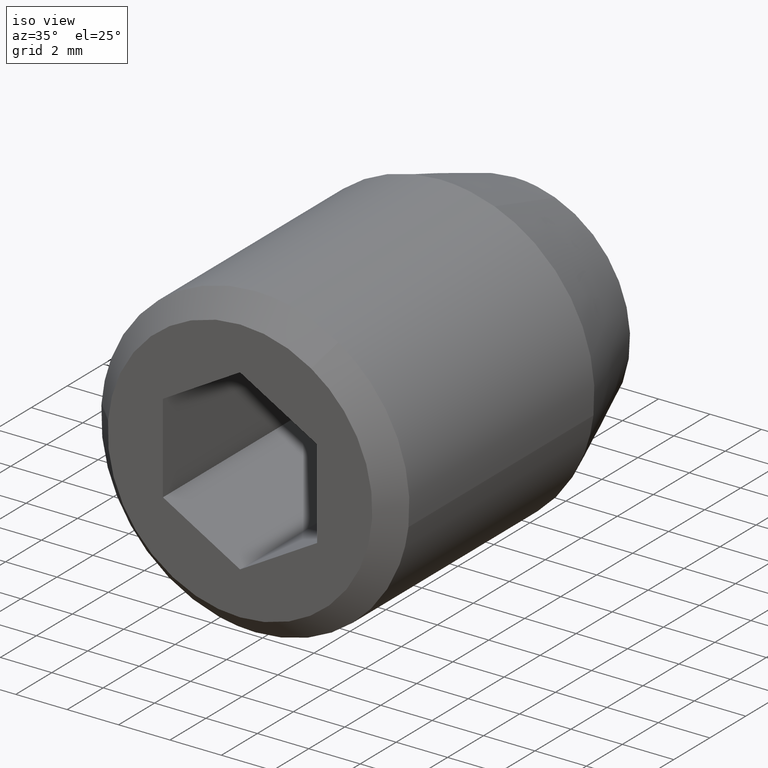
[diagram: clean part render]
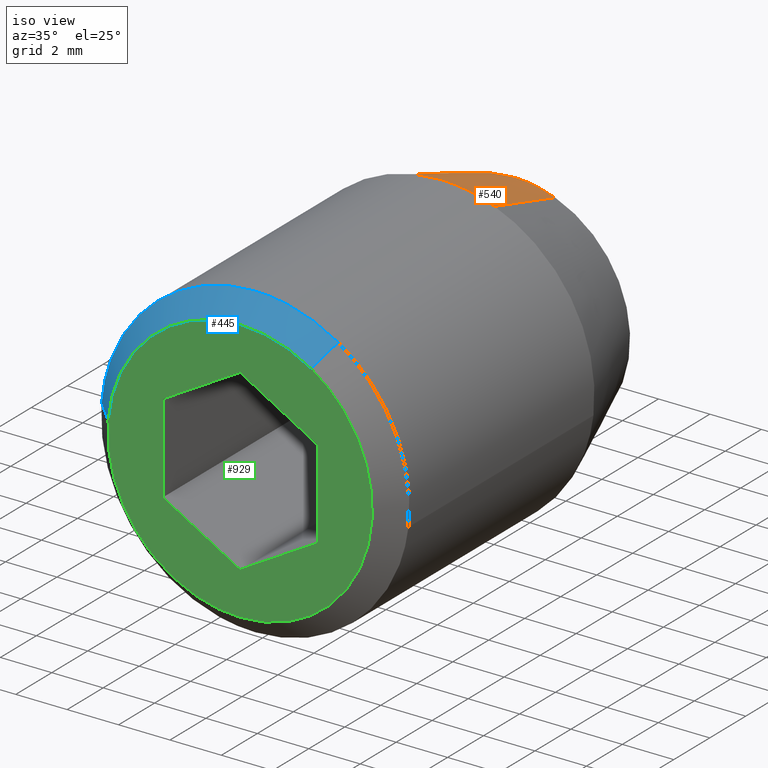
[diagram: same view with three faces highlighted in distinct colors, each labeled with its STEP entity id]
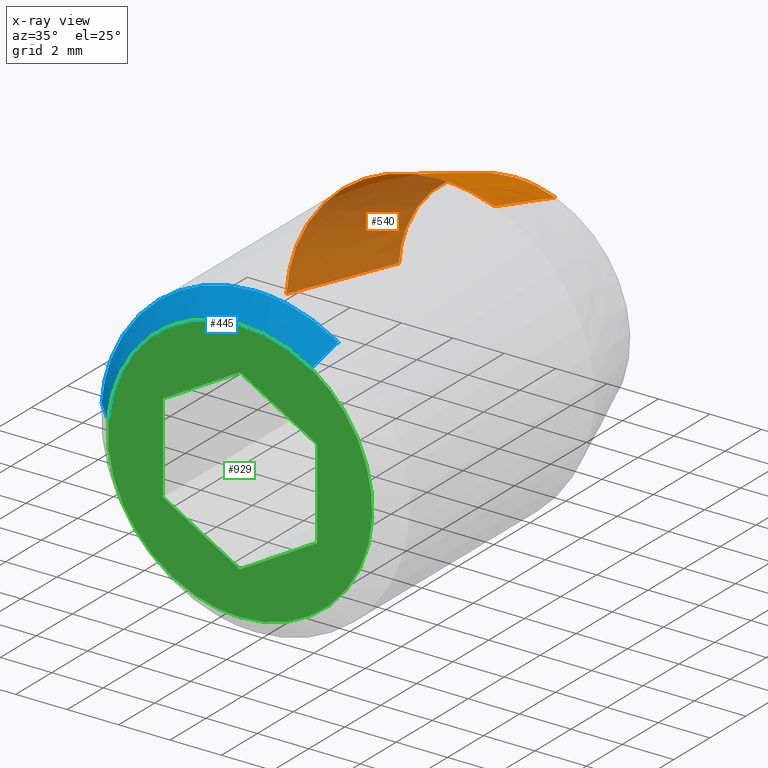
[diagram: x-ray of the same camera — body ghosted, the three highlighted faces saturated]
A machine part, iso view with three faces highlighted in distinct colors.
The next image is the same camera in x-ray (body ghosted, the three faces saturated) — at least one of them is partly hidden behind the body in this view.
Their STEP definitions:

[orange] entity #540 — the highlighted face is a freeform B-spline surface patch.
#446=CARTESIAN_POINT('',(1.569095210722392,0.103030400000000,4.177540720290837));
#447=CARTESIAN_POINT('',(0.941540428280011,0.103030400000000,4.413251936416990));
#448=CARTESIAN_POINT('',(0.272429107674300,0.103030400000000,4.454176537957586));
#449=CARTESIAN_POINT('',(-4.181747430283287,0.103030400000000,4.726605645631885));
#450=CARTESIAN_POINT('',(-4.454176537957586,0.103030400000000,0.272429107674299));
#451=CARTESIAN_POINT('',(2.123223162240108,-4.226822160000000,5.652844491469169));
#452=CARTESIAN_POINT('',(1.274046617342760,-4.226822160000000,5.971797420685251));
#453=CARTESIAN_POINT('',(0.368637790447513,-4.226822160000000,6.027174596845539));
#454=CARTESIAN_POINT('',(-5.658536806398027,-4.226822159999999,6.395812387293051));
#455=CARTESIAN_POINT('',(-6.027174596845540,-4.226822160000000,0.368637790447512));
#463=(BOUNDED_SURFACE()B_SPLINE_SURFACE(2,1,((#446,#451),(#447,#452),(#448,#453),(#449,#454),(#450,#455)),.UNSPECIFIED.,.F.,.F.,.U.)B_SPLINE_SURFACE_WITH_KNOTS((3,2,3),(2,2),(0.0,2.000962166433828,12.005772998602970),(0.0,4.607732869345269),.UNSPECIFIED.)GEOMETRIC_REPRESENTATION_ITEM()RATIONAL_B_SPLINE_SURFACE(((0.906274169979695,0.906274169979695),(0.941421356237309,0.941421356237309),(1.0,1.0),(0.707106781186548,0.707106781186548),(1.0,1.0)))REPRESENTATION_ITEM('')SURFACE());
#464=CARTESIAN_POINT('',(2.109704741784568,-4.121211920134648,5.616861052499977));
#465=VERTEX_POINT('',#464);
#466=CARTESIAN_POINT('',(0.0,-4.121216000000000,5.999999999999999));
#467=VERTEX_POINT('',#466);
#468=CARTESIAN_POINT('',(2.109704741784568,-4.121211920134647,5.616861052499977));
#469=CARTESIAN_POINT('',(1.089642630550919,-4.121213960067324,5.999999304936567));
#470=CARTESIAN_POINT('',(0.0,-4.121216000000000,5.999999999999999));
#478=(BOUNDED_CURVE()B_SPLINE_CURVE(2,(#468,#469,#470),.UNSPECIFIED.,.F.,.U.)B_SPLINE_CURVE_WITH_KNOTS((3,3),(0.440284243518573,0.500000000000000),.UNSPECIFIED.)CURVE()GEOMETRIC_REPRESENTATION_ITEM()RATIONAL_B_SPLINE_CURVE((0.893499643505045,0.930038639481098,1.0))REPRESENTATION_ITEM(''));
#479=EDGE_CURVE('',#465,#467,#478,.T.);
#480=ORIENTED_EDGE('',*,*,#479,.F.);
#481=CARTESIAN_POINT('',(1.582279453548931,0.000001884171921,4.212645909500716));
#482=VERTEX_POINT('',#481);
#483=CARTESIAN_POINT('',(1.582279453548931,0.000001884171921,4.212645909500716));
#484=CARTESIAN_POINT('',(2.109704741784568,-4.121211920134648,5.616861052499977));
#485=QUASI_UNIFORM_CURVE('',1,(#483,#484),.UNSPECIFIED.,.F.,.U.);
#486=EDGE_CURVE('',#482,#465,#485,.T.);
#487=ORIENTED_EDGE('',*,*,#486,.F.);
#488=CARTESIAN_POINT('',(0.0,0.0,4.499999999999999));
#489=VERTEX_POINT('',#488);
#490=CARTESIAN_POINT('',(1.582279453548931,0.000001884171921,4.212645909500716));
#491=CARTESIAN_POINT('',(0.817232460141086,0.000000942085960,4.499999679004433));
#492=CARTESIAN_POINT('',(0.0,0.0,4.499999999999999));
#500=(BOUNDED_CURVE()B_SPLINE_CURVE(2,(#490,#491,#492),.UNSPECIFIED.,.F.,.U.)B_SPLINE_CURVE_WITH_KNOTS((3,3),(0.440284215520028,0.500000000000000),.UNSPECIFIED.)CURVE()GEOMETRIC_REPRESENTATION_ITEM()RATIONAL_B_SPLINE_CURVE((0.893499609241441,0.930038606678762,1.0))REPRESENTATION_ITEM(''));
#501=EDGE_CURVE('',#482,#489,#500,.T.);
#502=ORIENTED_EDGE('',*,*,#501,.T.);
#503=CARTESIAN_POINT('',(-4.491606592898449,-1.484542E-012,0.274718427914976));
#504=VERTEX_POINT('',#503);
#505=CARTESIAN_POINT('',(0.0,0.0,4.499999999999999));
#506=CARTESIAN_POINT('',(-4.233177301060372,0.0,4.499999999999999));
#507=CARTESIAN_POINT('',(-4.491606592898449,-1.484542E-012,0.274718427914976));
#515=(BOUNDED_CURVE()B_SPLINE_CURVE(2,(#505,#506,#507),.UNSPECIFIED.,.F.,.U.)B_SPLINE_CURVE_WITH_KNOTS((3,3),(0.500000000000000,0.739332962241348),.UNSPECIFIED.)CURVE()GEOMETRIC_REPRESENTATION_ITEM()RATIONAL_B_SPLINE_CURVE((1.0,0.719603993283893,0.976072041671871))REPRESENTATION_ITEM(''));
#516=EDGE_CURVE('',#489,#504,#515,.T.);
#517=ORIENTED_EDGE('',*,*,#516,.T.);
#518=CARTESIAN_POINT('',(-5.988808820275182,-4.121215999515002,0.366290748006480));
#519=VERTEX_POINT('',#518);
#520=CARTESIAN_POINT('',(-4.491606592898449,-1.484542E-012,0.274718427914976));
#521=CARTESIAN_POINT('',(-5.988808820275182,-4.121215999515002,0.366290748006480));
#522=QUASI_UNIFORM_CURVE('',1,(#520,#521),.UNSPECIFIED.,.F.,.U.);
#523=EDGE_CURVE('',#504,#519,#522,.T.);
#524=ORIENTED_EDGE('',*,*,#523,.T.);
#525=CARTESIAN_POINT('',(0.0,-4.121216000000000,5.999999999999999));
#526=CARTESIAN_POINT('',(-5.644236863341449,-4.121215999999999,5.999999999999998));
#527=CARTESIAN_POINT('',(-5.988808820275182,-4.121215999515002,0.366290748006480));
#535=(BOUNDED_CURVE()B_SPLINE_CURVE(2,(#525,#526,#527),.UNSPECIFIED.,.F.,.U.)B_SPLINE_CURVE_WITH_KNOTS((3,3),(0.500000000000000,0.739332976336339),.UNSPECIFIED.)CURVE()GEOMETRIC_REPRESENTATION_ITEM()RATIONAL_B_SPLINE_CURVE((1.0,0.719603976770584,0.976072071880122))REPRESENTATION_ITEM(''));
#536=EDGE_CURVE('',#467,#519,#535,.T.);
#537=ORIENTED_EDGE('',*,*,#536,.F.);
#538=EDGE_LOOP('',(#480,#487,#502,#517,#524,#537));
#539=FACE_OUTER_BOUND('',#538,.T.);
#540=ADVANCED_FACE('',(#539),#463,.T.);

[blue] entity #445 — the highlighted face is a freeform B-spline surface patch.
#254=CARTESIAN_POINT('',(3.227104760680961,-14.399999999999780,5.058240293184284));
#255=VERTEX_POINT('',#254);
#271=CARTESIAN_POINT('',(2.769931586254138,-15.249999999999620,4.341656251648153));
#272=VERTEX_POINT('',#271);
#273=CARTESIAN_POINT('',(2.769931586254138,-15.249999999999620,4.341656251648153));
#274=CARTESIAN_POINT('',(3.227104760680961,-14.399999999999780,5.058240293184284));
#275=QUASI_UNIFORM_CURVE('',1,(#273,#274),.UNSPECIFIED.,.F.,.U.);
#276=EDGE_CURVE('',#272,#255,#275,.T.);
#295=CARTESIAN_POINT('',(-5.134124268725692,-15.249999999999790,0.404064342999993));
#296=VERTEX_POINT('',#295);
#312=CARTESIAN_POINT('',(-5.981504002399075,-14.399999999999240,0.470754574372927));
#313=VERTEX_POINT('',#312);
#314=CARTESIAN_POINT('',(-5.134124268725692,-15.249999999999790,0.404064342999993));
#315=CARTESIAN_POINT('',(-5.981504002399075,-14.399999999999240,0.470754574372927));
#316=QUASI_UNIFORM_CURVE('',1,(#314,#315),.UNSPECIFIED.,.F.,.U.);
#317=EDGE_CURVE('',#296,#313,#316,.T.);
#367=CARTESIAN_POINT('',(-5.112939775383778,-15.271250000000000,0.402397087214187));
#368=CARTESIAN_POINT('',(-4.710542688169590,-15.271250000000009,5.515336862597963));
#369=CARTESIAN_POINT('',(0.402397087214188,-15.271250000000000,5.112939775383777));
#370=CARTESIAN_POINT('',(1.678971265486370,-15.271249999999998,5.012471208665521));
#371=CARTESIAN_POINT('',(2.758502256887217,-15.271249999999995,4.323741650613284));
#372=CARTESIAN_POINT('',(-6.003218108074153,-14.378218750000000,0.472463511545895));
#373=CARTESIAN_POINT('',(-5.530754596528257,-14.378218749999991,6.475681619620048));
#374=CARTESIAN_POINT('',(0.472463511545896,-14.378218750000000,6.003218108074152));
#375=CARTESIAN_POINT('',(1.971318096182232,-14.378218749999998,5.885255693981367));
#376=CARTESIAN_POINT('',(3.238819823271979,-14.378218750000000,5.076602759250732));
#384=(BOUNDED_SURFACE()B_SPLINE_SURFACE(2,1,((#367,#372),(#368,#373),(#369,#374),(#370,#375),(#371,#376)),.UNSPECIFIED.,.F.,.F.,.U.)B_SPLINE_SURFACE_WITH_KNOTS((3,2,3),(2,2),(0.0,9.977213853576053,13.169922286720389),(0.0,1.0),.UNSPECIFIED.)GEOMETRIC_REPRESENTATION_ITEM()RATIONAL_B_SPLINE_SURFACE(((1.0,1.0),(0.707106781186548,0.707106781186548),(1.0,1.0),(0.906274169979695,0.906274169979695),(0.872532871172386,0.872532871172386)))REPRESENTATION_ITEM('')SURFACE());
#385=CARTESIAN_POINT('',(0.0,-14.400000000000000,5.999999999999999));
#386=VERTEX_POINT('',#385);
#387=CARTESIAN_POINT('',(3.227104760680960,-14.399999999999777,5.058240293184285));
#388=CARTESIAN_POINT('',(1.750968332280244,-14.399999999999997,5.999999999999999));
#389=CARTESIAN_POINT('',(0.0,-14.400000000000000,5.999999999999999));
#397=(BOUNDED_CURVE()B_SPLINE_CURVE(2,(#387,#388,#389),.UNSPECIFIED.,.F.,.U.)B_SPLINE_CURVE_WITH_KNOTS((3,3),(0.407950112627352,0.500000000000000),.UNSPECIFIED.)CURVE()GEOMETRIC_REPRESENTATION_ITEM()RATIONAL_B_SPLINE_CURVE((0.863729296954801,0.892156848784037,1.0))REPRESENTATION_ITEM(''));
#398=EDGE_CURVE('',#255,#386,#397,.T.);
#399=ORIENTED_EDGE('',*,*,#398,.T.);
#400=CARTESIAN_POINT('',(0.0,-14.400000000000000,5.999999999999999));
#401=CARTESIAN_POINT('',(-5.546342949938479,-14.400000000000000,5.999999999999999));
#402=CARTESIAN_POINT('',(-5.981504002399075,-14.399999999999240,0.470754574372926));
#410=(BOUNDED_CURVE()B_SPLINE_CURVE(2,(#400,#401,#402),.UNSPECIFIED.,.F.,.U.)B_SPLINE_CURVE_WITH_KNOTS((3,3),(0.500000000000000,0.736331300632435),.UNSPECIFIED.)CURVE()GEOMETRIC_REPRESENTATION_ITEM()RATIONAL_B_SPLINE_CURVE((1.0,0.723120658605585,0.969723356171123))REPRESENTATION_ITEM(''));
#411=EDGE_CURVE('',#386,#313,#410,.T.);
#412=ORIENTED_EDGE('',*,*,#411,.T.);
#413=ORIENTED_EDGE('',*,*,#317,.F.);
#414=CARTESIAN_POINT('',(0.0,-15.250000000000000,5.150000000000000));
#415=VERTEX_POINT('',#414);
#416=CARTESIAN_POINT('',(0.0,-15.250000000000000,5.150000000000000));
#417=CARTESIAN_POINT('',(-4.760611032036836,-15.250000000000002,5.150000000000000));
#418=CARTESIAN_POINT('',(-5.134124268725693,-15.249999999999796,0.404064342999993));
#426=(BOUNDED_CURVE()B_SPLINE_CURVE(2,(#416,#417,#418),.UNSPECIFIED.,.F.,.U.)B_SPLINE_CURVE_WITH_KNOTS((3,3),(0.500000000000000,0.736331300632662),.UNSPECIFIED.)CURVE()GEOMETRIC_REPRESENTATION_ITEM()RATIONAL_B_SPLINE_CURVE((1.0,0.723120658605320,0.969723356171596))REPRESENTATION_ITEM(''));
#427=EDGE_CURVE('',#415,#296,#426,.T.);
#428=ORIENTED_EDGE('',*,*,#427,.F.);
#429=CARTESIAN_POINT('',(2.769931586254138,-15.249999999999625,4.341656251648153));
#430=CARTESIAN_POINT('',(1.502914485210922,-15.250000000000002,5.150000000000000));
#431=CARTESIAN_POINT('',(0.0,-15.250000000000000,5.150000000000000));
#439=(BOUNDED_CURVE()B_SPLINE_CURVE(2,(#429,#430,#431),.UNSPECIFIED.,.F.,.U.)B_SPLINE_CURVE_WITH_KNOTS((3,3),(0.407950112627149,0.500000000000000),.UNSPECIFIED.)CURVE()GEOMETRIC_REPRESENTATION_ITEM()RATIONAL_B_SPLINE_CURVE((0.863729296954676,0.892156848783799,1.0))REPRESENTATION_ITEM(''));
#440=EDGE_CURVE('',#272,#415,#439,.T.);
#441=ORIENTED_EDGE('',*,*,#440,.F.);
#442=ORIENTED_EDGE('',*,*,#276,.T.);
#443=EDGE_LOOP('',(#399,#412,#413,#428,#441,#442));
#444=FACE_OUTER_BOUND('',#443,.T.);
#445=ADVANCED_FACE('',(#444),#384,.T.);

[green] entity #929 — the highlighted face is a freeform B-spline surface patch.
#271=CARTESIAN_POINT('',(2.769931586254138,-15.249999999999620,4.341656251648153));
#272=VERTEX_POINT('',#271);
#278=CARTESIAN_POINT('',(0.0,-15.250000000000000,-5.150000000000001));
#279=VERTEX_POINT('',#278);
#280=CARTESIAN_POINT('',(0.0,-15.250000000000000,-5.150000000000001));
#281=CARTESIAN_POINT('',(5.150000000000001,-15.250000000000002,-5.150000000000001));
#282=CARTESIAN_POINT('',(5.150000000000000,-15.250000000000000,-1.025608E-015));
#283=CARTESIAN_POINT('',(5.150000000000000,-15.250000000000004,2.823197328466532));
#284=CARTESIAN_POINT('',(2.769931586254138,-15.249999999999623,4.341656251648153));
#292=(BOUNDED_CURVE()B_SPLINE_CURVE(2,(#280,#281,#282,#283,#284),.UNSPECIFIED.,.F.,.U.)B_SPLINE_CURVE_WITH_KNOTS((3,2,3),(0.0,0.250000000000000,0.407950112627149),.UNSPECIFIED.)CURVE()GEOMETRIC_REPRESENTATION_ITEM()RATIONAL_B_SPLINE_CURVE((1.0,0.707106781186547,1.0,0.814949932402748,0.863729296954676))REPRESENTATION_ITEM(''));
#293=EDGE_CURVE('',#279,#272,#292,.T.);
#295=CARTESIAN_POINT('',(-5.134124268725692,-15.249999999999790,0.404064342999993));
#296=VERTEX_POINT('',#295);
#297=CARTESIAN_POINT('',(-5.134124268725693,-15.249999999999796,0.404064342999993));
#298=CARTESIAN_POINT('',(-5.150000000000000,-15.250000000000002,0.202344051091080));
#299=CARTESIAN_POINT('',(-5.150000000000000,-15.250000000000000,-1.025608E-015));
#300=CARTESIAN_POINT('',(-5.150000000000001,-15.250000000000002,-5.150000000000001));
#301=CARTESIAN_POINT('',(0.0,-15.250000000000000,-5.150000000000001));
#309=(BOUNDED_CURVE()B_SPLINE_CURVE(2,(#297,#298,#299,#300,#301),.UNSPECIFIED.,.F.,.U.)B_SPLINE_CURVE_WITH_KNOTS((3,2,3),(0.736331300632662,0.750000000000000,1.0),.UNSPECIFIED.)CURVE()GEOMETRIC_REPRESENTATION_ITEM()RATIONAL_B_SPLINE_CURVE((0.969723356171596,0.983986122581228,1.0,0.707106781186547,1.0))REPRESENTATION_ITEM(''));
#310=EDGE_CURVE('',#296,#279,#309,.T.);
#414=CARTESIAN_POINT('',(0.0,-15.250000000000000,5.150000000000000));
#415=VERTEX_POINT('',#414);
#416=CARTESIAN_POINT('',(0.0,-15.250000000000000,5.150000000000000));
#417=CARTESIAN_POINT('',(-4.760611032036836,-15.250000000000002,5.150000000000000));
#418=CARTESIAN_POINT('',(-5.134124268725693,-15.249999999999796,0.404064342999993));
#426=(BOUNDED_CURVE()B_SPLINE_CURVE(2,(#416,#417,#418),.UNSPECIFIED.,.F.,.U.)B_SPLINE_CURVE_WITH_KNOTS((3,3),(0.500000000000000,0.736331300632662),.UNSPECIFIED.)CURVE()GEOMETRIC_REPRESENTATION_ITEM()RATIONAL_B_SPLINE_CURVE((1.0,0.723120658605320,0.969723356171596))REPRESENTATION_ITEM(''));
#427=EDGE_CURVE('',#415,#296,#426,.T.);
#429=CARTESIAN_POINT('',(2.769931586254138,-15.249999999999625,4.341656251648153));
#430=CARTESIAN_POINT('',(1.502914485210922,-15.250000000000002,5.150000000000000));
#431=CARTESIAN_POINT('',(0.0,-15.250000000000000,5.150000000000000));
#439=(BOUNDED_CURVE()B_SPLINE_CURVE(2,(#429,#430,#431),.UNSPECIFIED.,.F.,.U.)B_SPLINE_CURVE_WITH_KNOTS((3,3),(0.407950112627149,0.500000000000000),.UNSPECIFIED.)CURVE()GEOMETRIC_REPRESENTATION_ITEM()RATIONAL_B_SPLINE_CURVE((0.863729296954676,0.892156848783799,1.0))REPRESENTATION_ITEM(''));
#440=EDGE_CURVE('',#272,#415,#439,.T.);
#783=CARTESIAN_POINT('',(3.0,-15.250000000000000,1.732051000000000));
#784=VERTEX_POINT('',#783);
#785=CARTESIAN_POINT('',(0.0,-15.250000000000000,3.464102000000000));
#786=VERTEX_POINT('',#785);
#787=CARTESIAN_POINT('',(3.0,-15.250000000000000,1.732051000000000));
#788=CARTESIAN_POINT('',(0.0,-15.250000000000000,3.464102000000000));
#789=QUASI_UNIFORM_CURVE('',1,(#787,#788),.UNSPECIFIED.,.F.,.U.);
#790=EDGE_CURVE('',#784,#786,#789,.T.);
#811=CARTESIAN_POINT('',(3.0,-15.250000000000000,-1.732051000000000));
#812=VERTEX_POINT('',#811);
#813=CARTESIAN_POINT('',(3.0,-15.250000000000000,-1.732051000000000));
#814=CARTESIAN_POINT('',(3.0,-15.250000000000000,1.732051000000000));
#815=QUASI_UNIFORM_CURVE('',1,(#813,#814),.UNSPECIFIED.,.F.,.U.);
#816=EDGE_CURVE('',#812,#784,#815,.T.);
#833=CARTESIAN_POINT('',(0.0,-15.250000000000000,-3.464102000000000));
#834=VERTEX_POINT('',#833);
#835=CARTESIAN_POINT('',(0.0,-15.250000000000000,-3.464102000000000));
#836=CARTESIAN_POINT('',(3.0,-15.250000000000000,-1.732051000000000));
#837=QUASI_UNIFORM_CURVE('',1,(#835,#836),.UNSPECIFIED.,.F.,.U.);
#838=EDGE_CURVE('',#834,#812,#837,.T.);
#855=CARTESIAN_POINT('',(-3.0,-15.250000000000000,-1.732051000000000));
#856=VERTEX_POINT('',#855);
#857=CARTESIAN_POINT('',(-3.0,-15.250000000000000,-1.732051000000000));
#858=CARTESIAN_POINT('',(0.0,-15.250000000000000,-3.464102000000000));
#859=QUASI_UNIFORM_CURVE('',1,(#857,#858),.UNSPECIFIED.,.F.,.U.);
#860=EDGE_CURVE('',#856,#834,#859,.T.);
#877=CARTESIAN_POINT('',(-3.0,-15.250000000000000,1.732051000000000));
#878=VERTEX_POINT('',#877);
#879=CARTESIAN_POINT('',(-3.0,-15.250000000000000,1.732051000000000));
#880=CARTESIAN_POINT('',(-3.0,-15.250000000000000,-1.732051000000000));
#881=QUASI_UNIFORM_CURVE('',1,(#879,#880),.UNSPECIFIED.,.F.,.U.);
#882=EDGE_CURVE('',#878,#856,#881,.T.);
#899=CARTESIAN_POINT('',(0.0,-15.250000000000000,3.464102000000000));
#900=CARTESIAN_POINT('',(-3.0,-15.250000000000000,1.732051000000000));
#901=QUASI_UNIFORM_CURVE('',1,(#899,#900),.UNSPECIFIED.,.F.,.U.);
#902=EDGE_CURVE('',#786,#878,#901,.T.);
#910=CARTESIAN_POINT('',(-5.662893836825605,-15.250000000000000,5.664485076725633));
#911=CARTESIAN_POINT('',(-5.662893836825605,-15.250000000000000,-5.664485260903986));
#912=CARTESIAN_POINT('',(5.662504852145430,-15.250000000000000,5.664485076725633));
#913=CARTESIAN_POINT('',(5.662504852145430,-15.250000000000000,-5.664485260903986));
#914=B_SPLINE_SURFACE_WITH_KNOTS('',1,1,((#910,#912),(#911,#913)),.UNSPECIFIED.,.F.,.F.,.U.,(2,2),(2,2),(0.0,11.328970337629620),(0.0,11.325398688971040),.UNSPECIFIED.);
#915=ORIENTED_EDGE('',*,*,#293,.T.);
#916=ORIENTED_EDGE('',*,*,#440,.T.);
#917=ORIENTED_EDGE('',*,*,#427,.T.);
#918=ORIENTED_EDGE('',*,*,#310,.T.);
#919=EDGE_LOOP('',(#915,#916,#917,#918));
#920=FACE_OUTER_BOUND('',#919,.T.);
#921=ORIENTED_EDGE('',*,*,#902,.F.);
#922=ORIENTED_EDGE('',*,*,#790,.F.);
#923=ORIENTED_EDGE('',*,*,#816,.F.);
#924=ORIENTED_EDGE('',*,*,#838,.F.);
#925=ORIENTED_EDGE('',*,*,#860,.F.);
#926=ORIENTED_EDGE('',*,*,#882,.F.);
#927=EDGE_LOOP('',(#921,#922,#923,#924,#925,#926));
#928=FACE_BOUND('',#927,.T.);
#929=ADVANCED_FACE('',(#920,#928),#914,.T.);